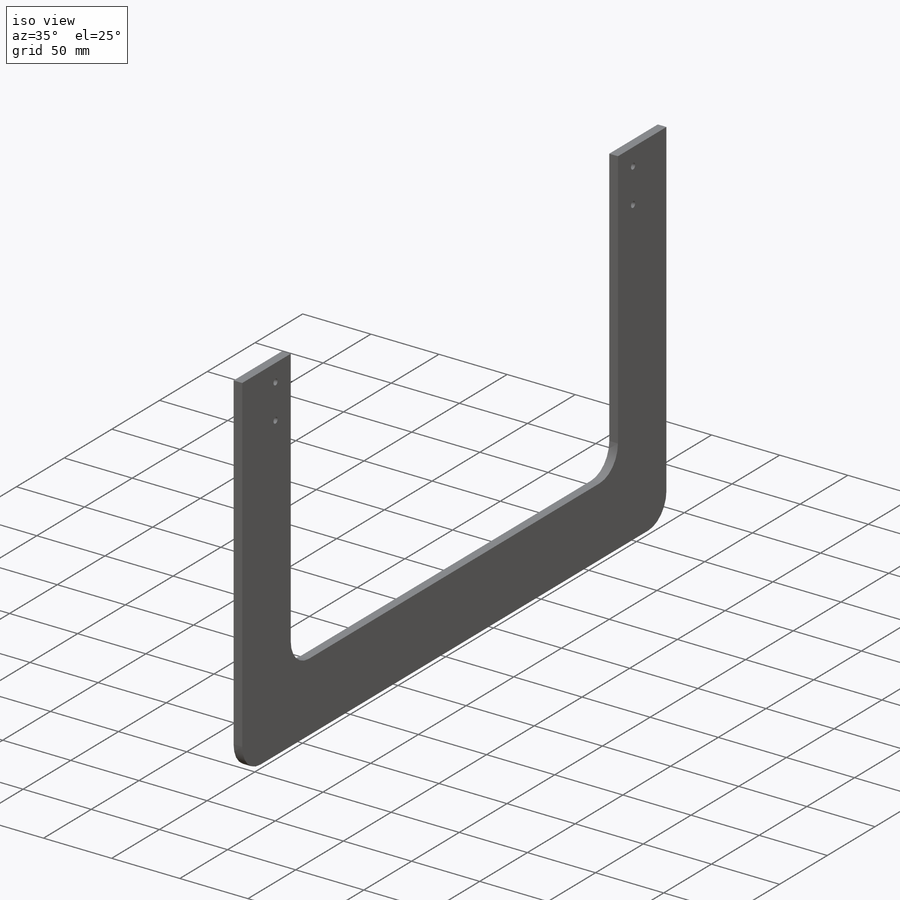
[diagram: iso view]
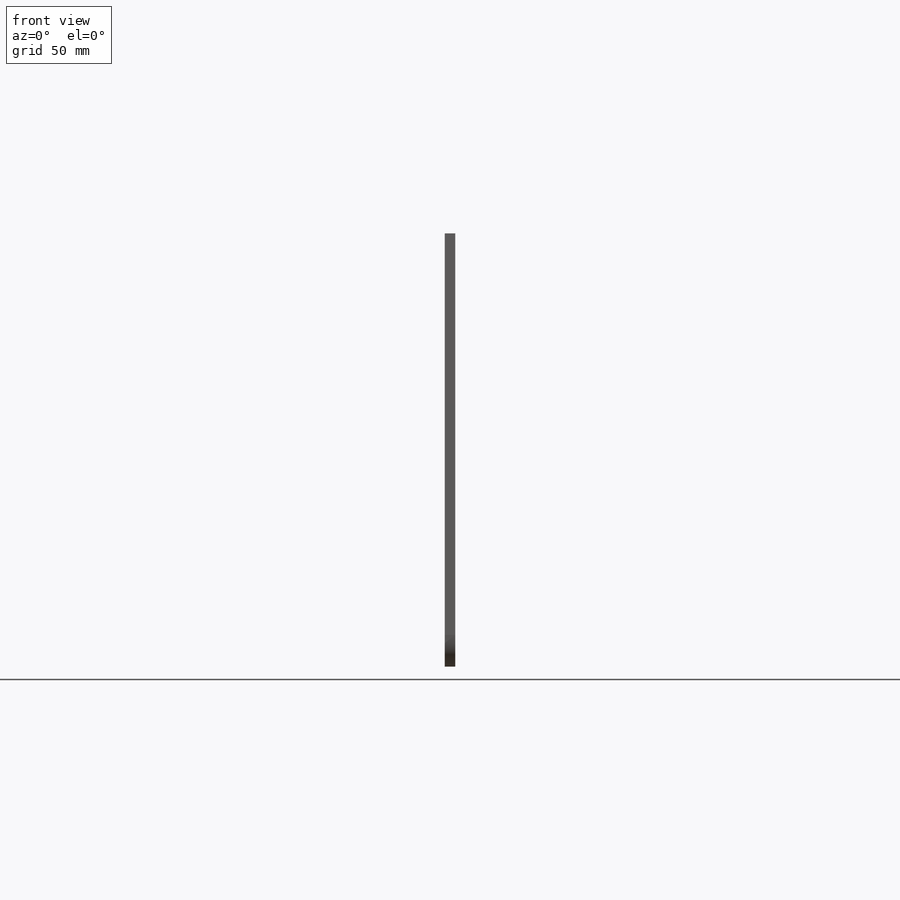
[diagram: front view]
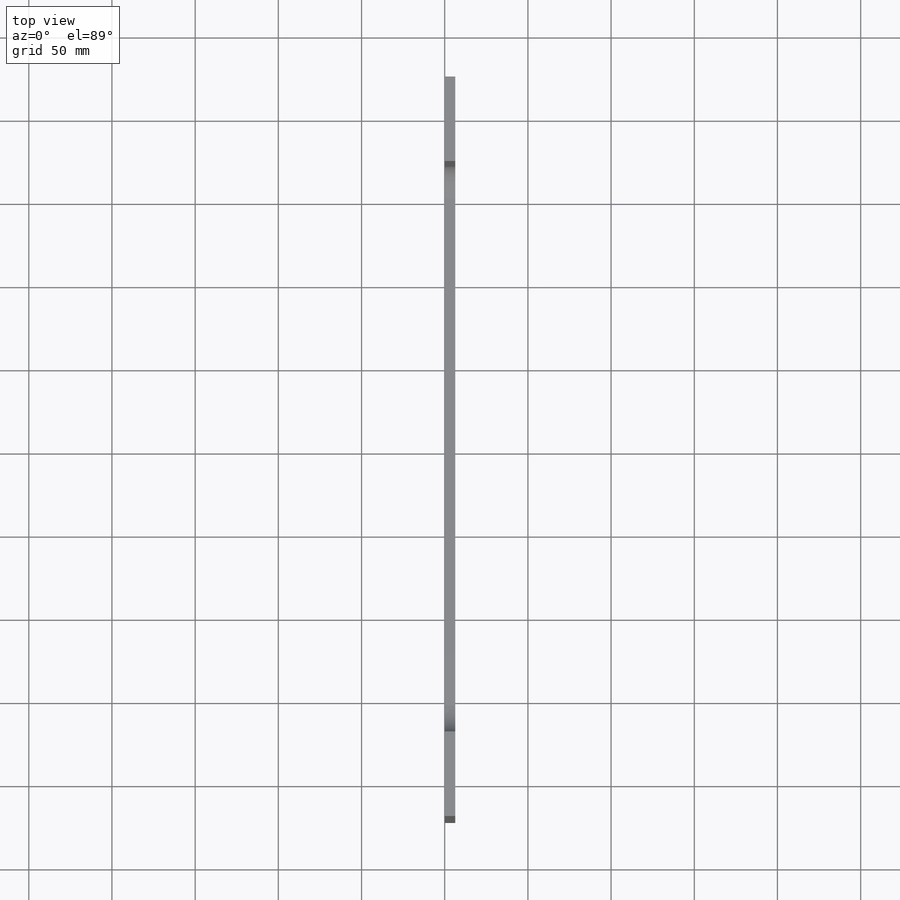
[diagram: top view]
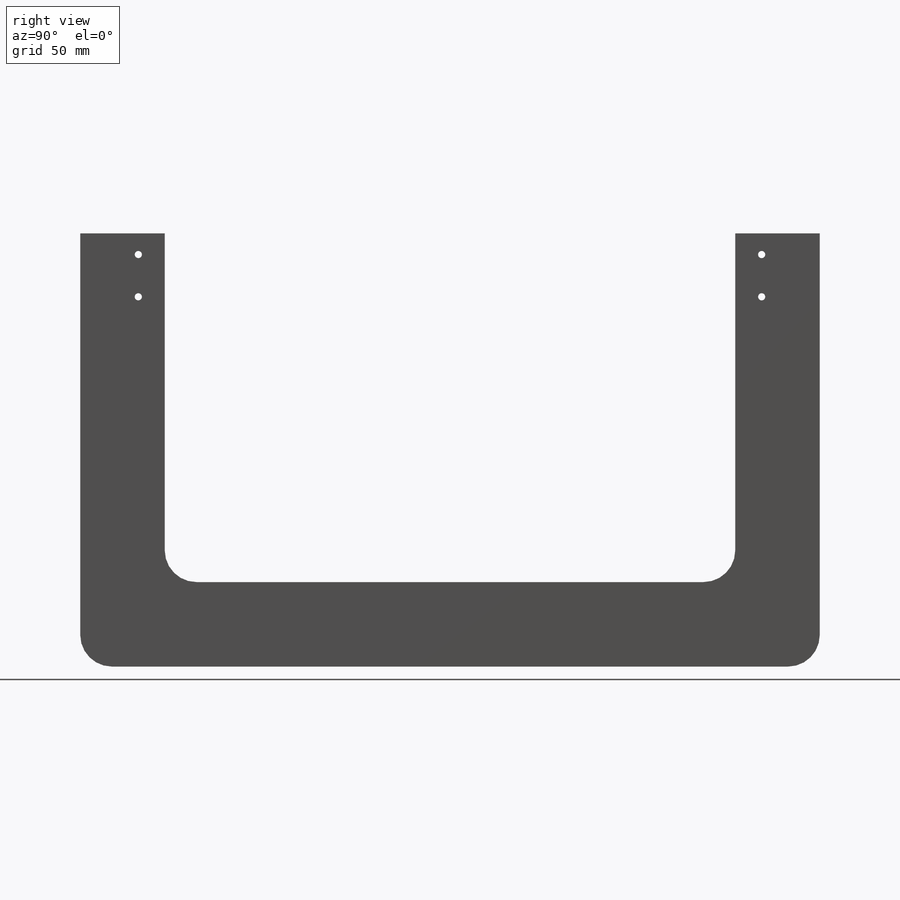
[diagram: right view]
SOLIDWORKS PART (.sldprt)
format: sldprt  version: not decoded by parser v0  size: 212,992 bytes
history: native  units: mm
features: sketch x3, material x1, extrude x1, hole x1, mirror x1 (+12 scaffold rows collapsed)
feature tree (19):
  scaffold x12  (default folders/planes/origin — collapsed)
  material  "Delrin 2700 NC010, Low Viscosity Acetal Copolymer (SS)"
  sketch  "Sketch1"  dims[c1.D8=19.05mm c1.D1=50.8mm c1.D2=330.2mm c1.D3=260.35mm c1.D4=92.075mm c1.D5=50.8mm c1.D6=311.15mm c1.D7=431.8mm c2.D1=50.8mm c2.D2=330.2mm c2.D3=203.2mm c2.D4=6.35mm c2.D5=6.35mm c2.D6=6.35mm c2.D7=50.8mm c2.D9=254.0mm c2.D10=50.8mm]
  extrude  "Boss-Extrude2"  Depth=6.35mm
  hole  "CSK for #8 Flat Head Socket Cap Screw1"  Diameter=4.3053mm Depth=6.35mm
  sketch  "Sketch4"  dims[D1=50.8mm D2=12.7mm D3=15.875mm D4=31.75mm]
  sketch  "Sketch5"  dims[hole-wizard template sketch: 55 standard entries collapsed; hole parameters kept: c17.Thru Hole Depth=6.35mm c17.Near C'Sink Dia.=9.1186mm c17.D4=~3.666174mm c17.Near C'Sink Angle=82.0deg]
  mirror  "Mirror1"
decode coverage: 5 of 6 modeling features carry decoded parameters
note: ~ marks probable driven/reference dimensions
note: suppression state not decoded; provenance and decode notes live in map.json
